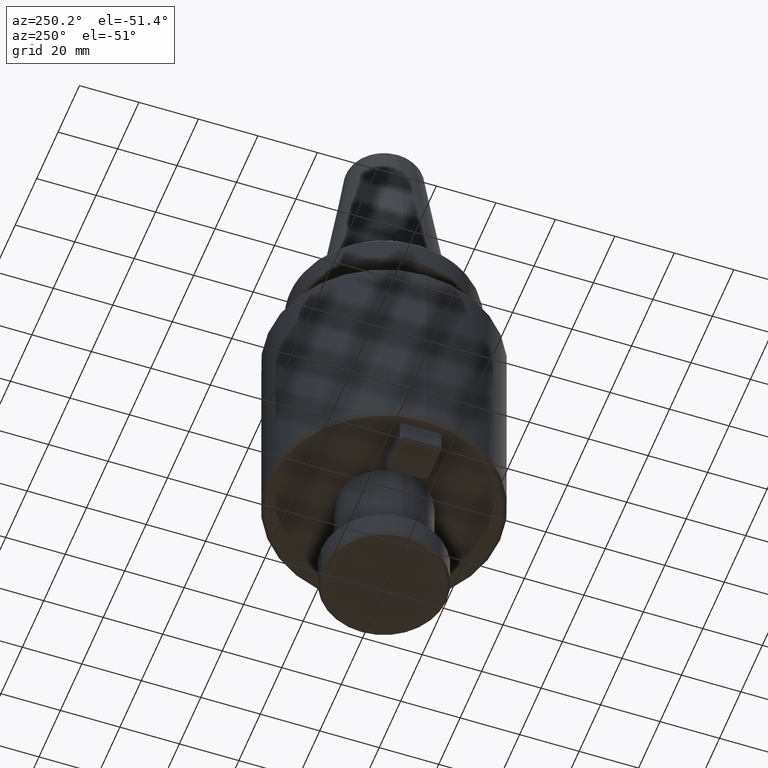
[diagram: clean part render]
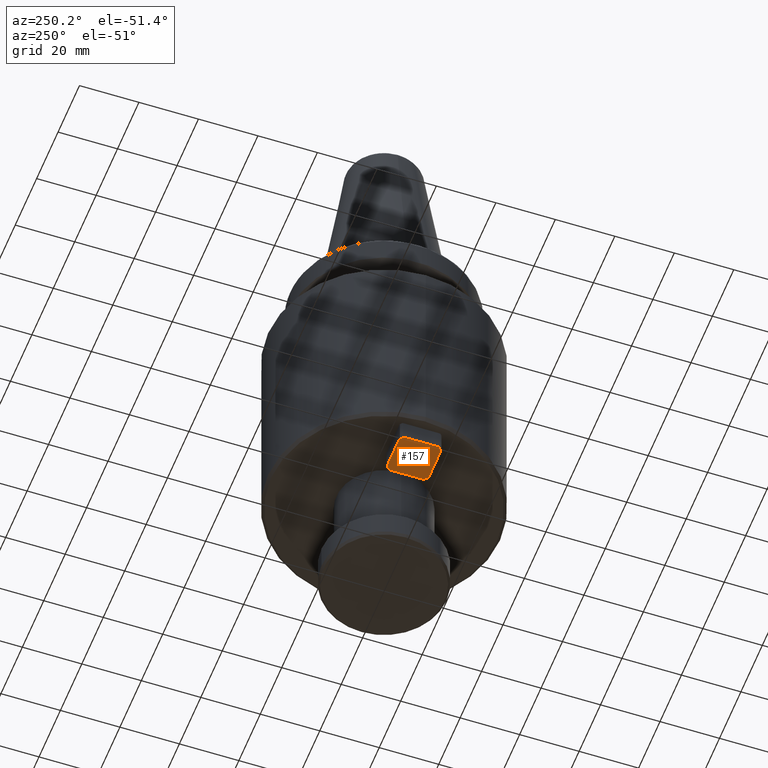
[diagram: same view with one face highlighted and labeled with its STEP entity id]
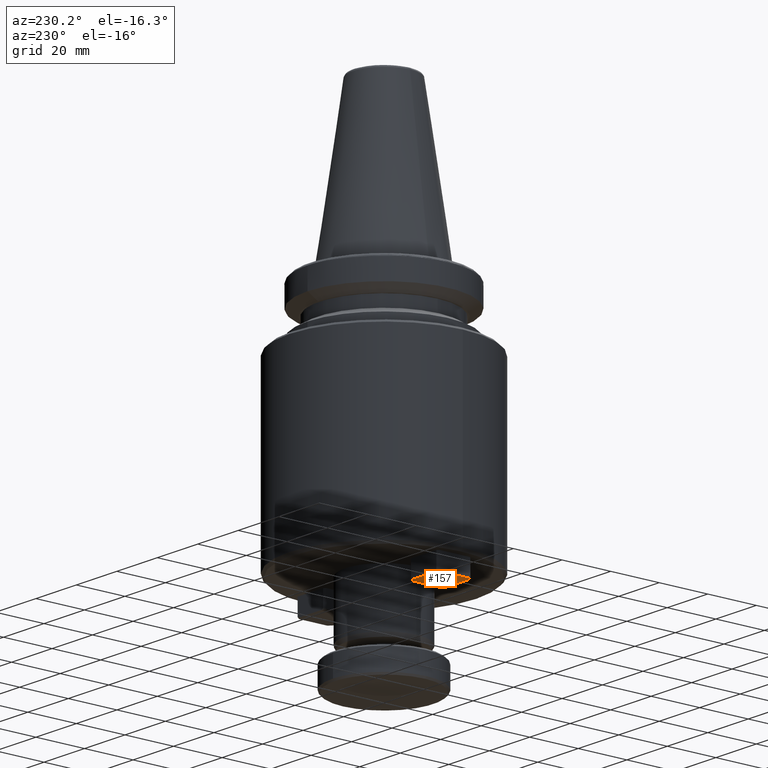
[diagram: same view with one face highlighted and labeled with its STEP entity id]
A machine part, auxiliary view. The second image highlights one B-rep face of the part: STEP entity #157.
A second angle (auxiliary view) of the same face is appended — the face is thin or edge-on in the first view.
In plain terms, the highlighted planar face has unit normal (0, 0, -1).
Its self-contained STEP definition (entity closure, byte-faithful):
#7 = LINE ( 'NONE', #159, #253 ) ;
#128 = LINE ( 'NONE', #1264, #215 ) ;
#156 = DIRECTION ( 'NONE',  ( -0.0000000000000000000, -1.000000000000000000, -0.0000000000000000000 ) ) ;
#157 = ADVANCED_FACE ( 'NONE', ( #2644 ), #1962, .T. ) ;
#159 = CARTESIAN_POINT ( 'NONE',  ( -27.99999999999999600, 7.000000000000000000, -107.0000000000000000 ) ) ;
#202 = VERTEX_POINT ( 'NONE', #1302 ) ;
#215 = VECTOR ( 'NONE', #156, 1000.000000000000000 ) ;
#253 = VECTOR ( 'NONE', #2124, 1000.000000000000000 ) ;
#267 = EDGE_CURVE ( 'NONE', #2302, #202, #128, .T. ) ;
#284 = EDGE_CURVE ( 'NONE', #366, #1040, #7, .T. ) ;
#296 = ORIENTED_EDGE ( 'NONE', *, *, #2182, .T. ) ;
#366 = VERTEX_POINT ( 'NONE', #2265 ) ;
#437 = VERTEX_POINT ( 'NONE', #2460 ) ;
#830 = VERTEX_POINT ( 'NONE', #1247 ) ;
#1026 = VERTEX_POINT ( 'NONE', #1604 ) ;
#1040 = VERTEX_POINT ( 'NONE', #1569 ) ;
#1077 = VECTOR ( 'NONE', #2256, 1000.000000000000000 ) ;
#1097 = CARTESIAN_POINT ( 'NONE',  ( -35.00000000003417700, 5.734314573931649200, -107.0000000000000000 ) ) ;
#1121 = LINE ( 'NONE', #2171, #1077 ) ;
#1133 = VERTEX_POINT ( 'NONE', #1097 ) ;
#1221 = ORIENTED_EDGE ( 'NONE', *, *, #2452, .T. ) ;
#1247 = CARTESIAN_POINT ( 'NONE',  ( -33.73431457393165500, -7.000000000034176200, -107.0000000000000000 ) ) ;
#1264 = CARTESIAN_POINT ( 'NONE',  ( -21.00000000000000000, 0.0000000000000000000, -107.0000000000000000 ) ) ;
#1298 = VECTOR ( 'NONE', #2465, 1000.000000000000100 ) ;
#1302 = CARTESIAN_POINT ( 'NONE',  ( -20.99999999996582300, -5.734314573931647500, -107.0000000000000000 ) ) ;
#1307 = LINE ( 'NONE', #2416, #1298 ) ;
#1431 = ORIENTED_EDGE ( 'NONE', *, *, #2386, .T. ) ;
#1569 = CARTESIAN_POINT ( 'NONE',  ( -22.26568542606835500, 7.000000000034176200, -107.0000000000000000 ) ) ;
#1579 = AXIS2_PLACEMENT_3D ( 'NONE', #1956, #1581, #1685 ) ;
#1581 = DIRECTION ( 'NONE',  ( 0.0000000000000000000, 0.0000000000000000000, -1.000000000000000000 ) ) ;
#1604 = CARTESIAN_POINT ( 'NONE',  ( -35.00000000003417000, -5.734314573931659900, -107.0000000000000000 ) ) ;
#1665 = VECTOR ( 'NONE', #2528, 1000.000000000000000 ) ;
#1667 = LINE ( 'NONE', #2516, #1665 ) ;
#1685 = DIRECTION ( 'NONE',  ( -1.000000000000000000, 0.0000000000000000000, 0.0000000000000000000 ) ) ;
#1688 = VECTOR ( 'NONE', #2578, 999.9999999999998900 ) ;
#1703 = ORIENTED_EDGE ( 'NONE', *, *, #267, .T. ) ;
#1733 = LINE ( 'NONE', #2618, #1688 ) ;
#1775 = VECTOR ( 'NONE', #2842, 1000.000000000000000 ) ;
#1797 = LINE ( 'NONE', #2837, #1775 ) ;
#1800 = VECTOR ( 'NONE', #2161, 1000.000000000000000 ) ;
#1802 = LINE ( 'NONE', #2897, #1800 ) ;
#1956 = CARTESIAN_POINT ( 'NONE',  ( -21.00000000000000000, -7.000000000000000000, -107.0000000000000000 ) ) ;
#1962 = PLANE ( 'NONE',  #1579 ) ;
#2031 = EDGE_LOOP ( 'NONE', ( #2799, #2803, #2905, #2996, #1703, #1431, #296, #1221 ) ) ;
#2124 = DIRECTION ( 'NONE',  ( 1.000000000000000000, 0.0000000000000000000, 0.0000000000000000000 ) ) ;
#2161 = DIRECTION ( 'NONE',  ( -1.000000000000000000, -0.0000000000000000000, -0.0000000000000000000 ) ) ;
#2171 = CARTESIAN_POINT ( 'NONE',  ( -35.00000000000000000, 5.734314571999999700, -107.0000000000000000 ) ) ;
#2182 = EDGE_CURVE ( 'NONE', #437, #830, #1802, .T. ) ;
#2223 = EDGE_CURVE ( 'NONE', #1026, #1133, #1797, .T. ) ;
#2256 = DIRECTION ( 'NONE',  ( 0.7071067811865465700, 0.7071067811865485700, 0.0000000000000000000 ) ) ;
#2265 = CARTESIAN_POINT ( 'NONE',  ( -33.73431457393165500, 7.000000000034175300, -107.0000000000000000 ) ) ;
#2302 = VERTEX_POINT ( 'NONE', #2586 ) ;
#2313 = EDGE_CURVE ( 'NONE', #1040, #2302, #1733, .T. ) ;
#2386 = EDGE_CURVE ( 'NONE', #202, #437, #1667, .T. ) ;
#2416 = CARTESIAN_POINT ( 'NONE',  ( -33.73431457200000200, -7.000000000000000900, -107.0000000000000000 ) ) ;
#2452 = EDGE_CURVE ( 'NONE', #830, #1026, #1307, .T. ) ;
#2460 = CARTESIAN_POINT ( 'NONE',  ( -22.26568542606836200, -7.000000000034176200, -107.0000000000000000 ) ) ;
#2465 = DIRECTION ( 'NONE',  ( -0.7071067811865489100, 0.7071067811865461300, 0.0000000000000000000 ) ) ;
#2516 = CARTESIAN_POINT ( 'NONE',  ( -21.00000000000000400, -5.734314572000000600, -107.0000000000000000 ) ) ;
#2522 = EDGE_CURVE ( 'NONE', #1133, #366, #1121, .T. ) ;
#2528 = DIRECTION ( 'NONE',  ( -0.7071067811865470200, -0.7071067811865480200, 0.0000000000000000000 ) ) ;
#2578 = DIRECTION ( 'NONE',  ( 0.7071067811865475700, -0.7071067811865475700, 0.0000000000000000000 ) ) ;
#2586 = CARTESIAN_POINT ( 'NONE',  ( -20.99999999996582300, 5.734314573931654600, -107.0000000000000000 ) ) ;
#2618 = CARTESIAN_POINT ( 'NONE',  ( -22.26568542800000500, 7.000000000000001800, -107.0000000000000000 ) ) ;
#2644 = FACE_OUTER_BOUND ( 'NONE', #2031, .T. ) ;
#2799 = ORIENTED_EDGE ( 'NONE', *, *, #2223, .T. ) ;
#2803 = ORIENTED_EDGE ( 'NONE', *, *, #2522, .T. ) ;
#2837 = CARTESIAN_POINT ( 'NONE',  ( -35.00000000000000000, 0.0000000000000000000, -107.0000000000000000 ) ) ;
#2842 = DIRECTION ( 'NONE',  ( 0.0000000000000000000, 1.000000000000000000, 0.0000000000000000000 ) ) ;
#2897 = CARTESIAN_POINT ( 'NONE',  ( -27.99999999999999600, -7.000000000000000000, -107.0000000000000000 ) ) ;
#2905 = ORIENTED_EDGE ( 'NONE', *, *, #284, .T. ) ;
#2996 = ORIENTED_EDGE ( 'NONE', *, *, #2313, .T. ) ;